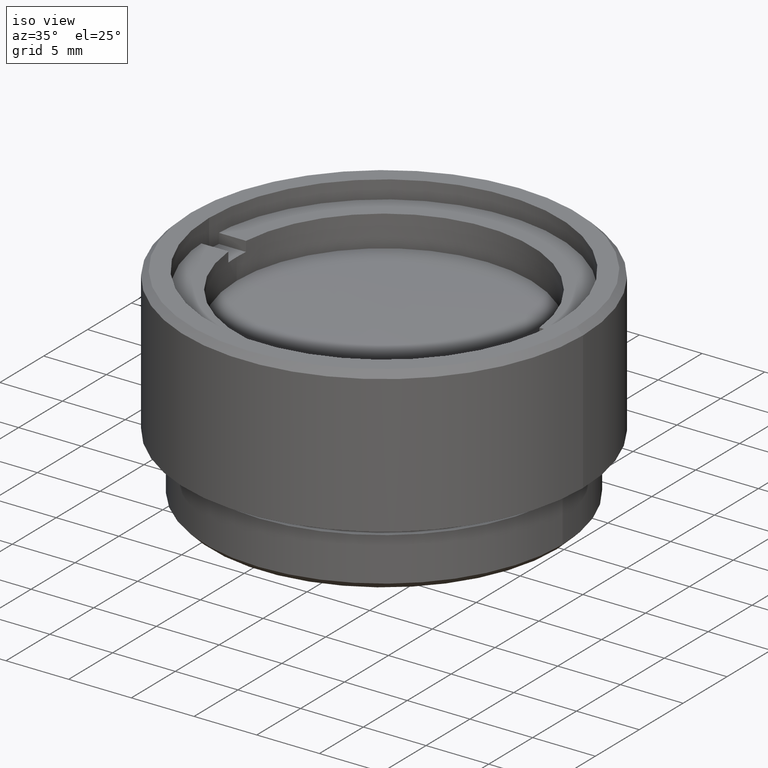
[diagram: clean part render]
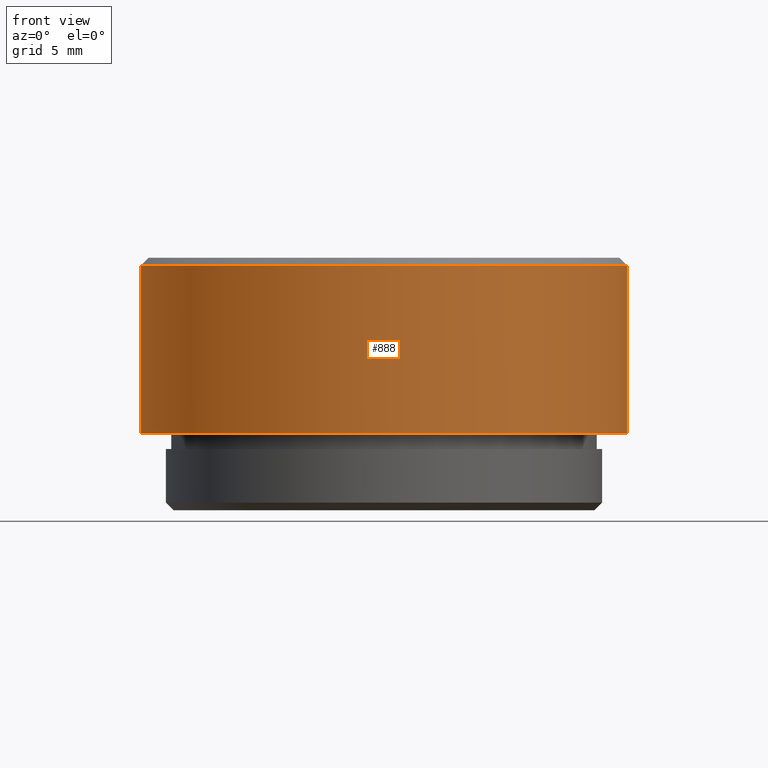
[diagram: tour spotlight — one face highlighted and labeled with its STEP entity id]
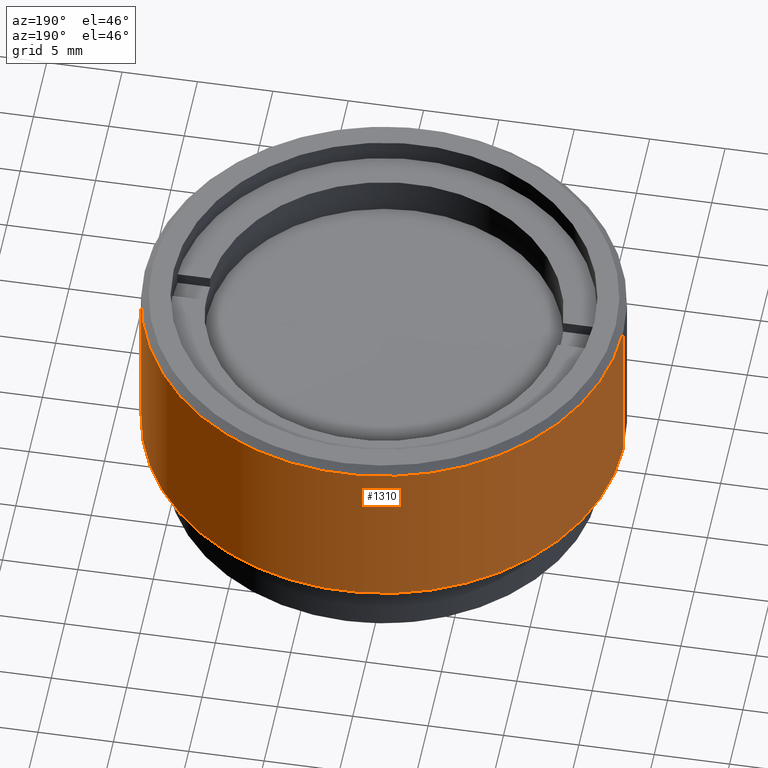
[diagram: tour spotlight — one face highlighted and labeled with its STEP entity id]
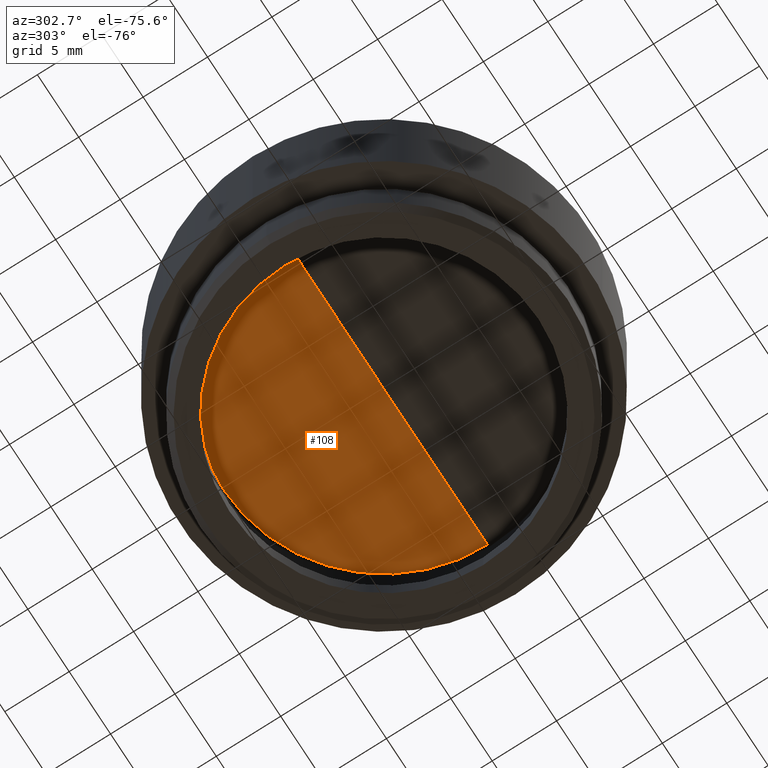
[diagram: tour spotlight — one face highlighted and labeled with its STEP entity id]
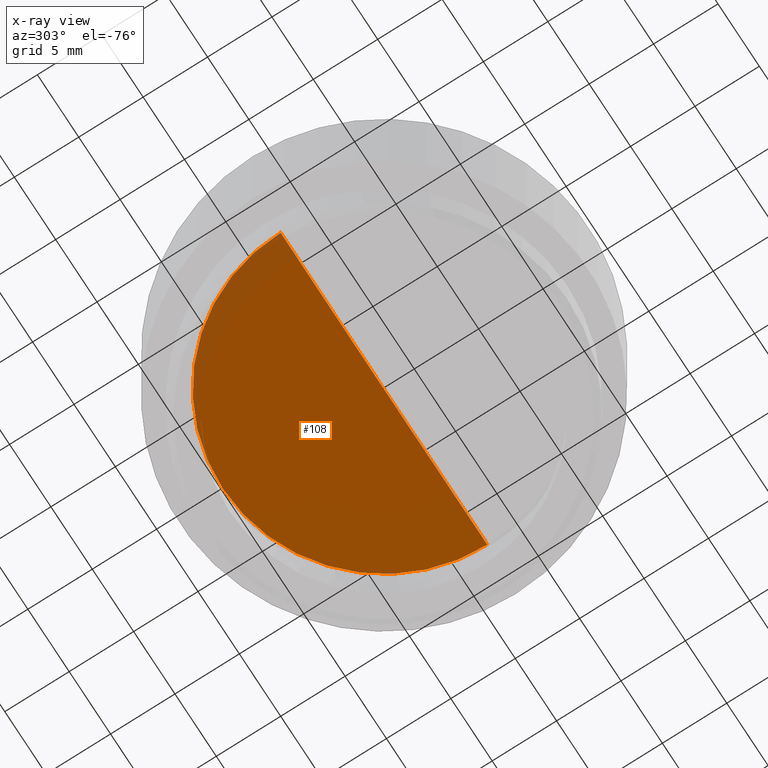
[diagram: x-ray of the same camera — body ghosted, this tour face saturated]
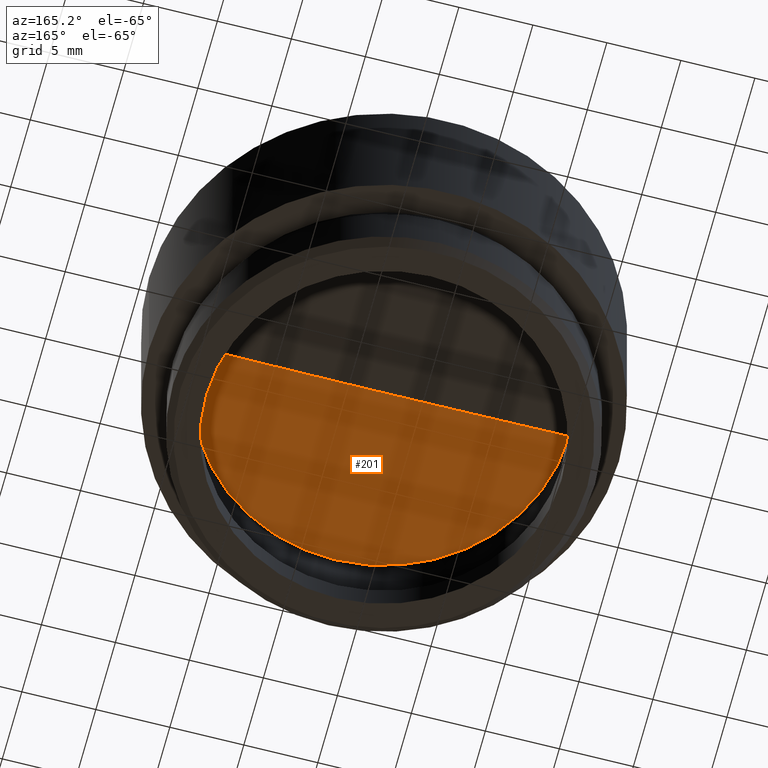
[diagram: tour spotlight — one face highlighted and labeled with its STEP entity id]
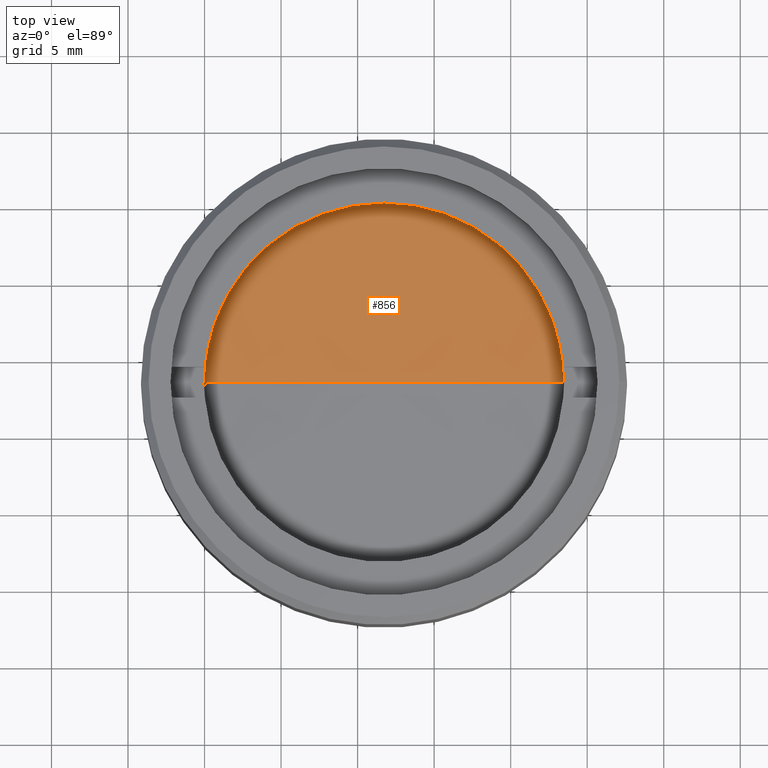
[diagram: tour spotlight — one face highlighted and labeled with its STEP entity id]
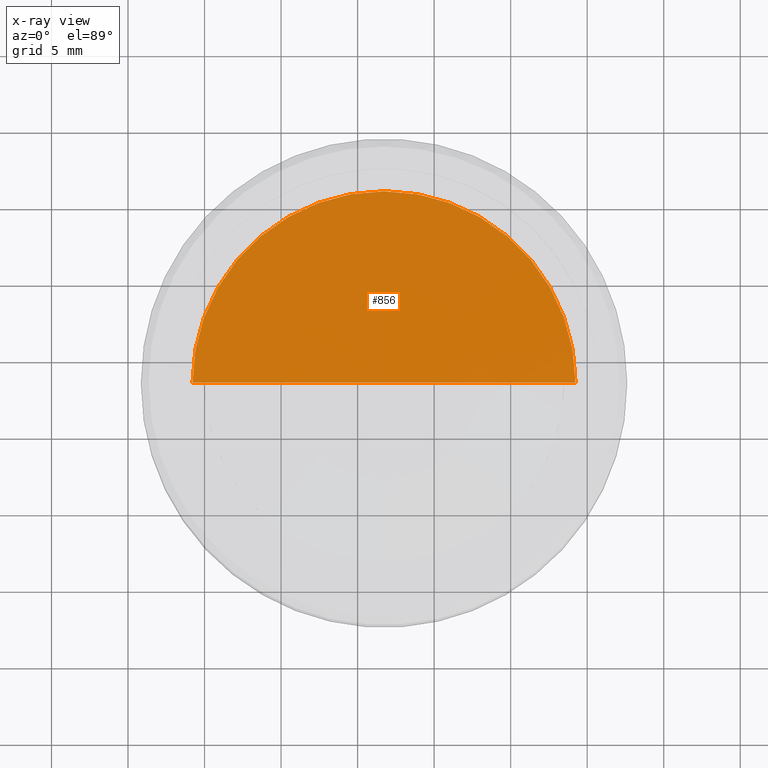
[diagram: x-ray of the same camera — body ghosted, this tour face saturated]
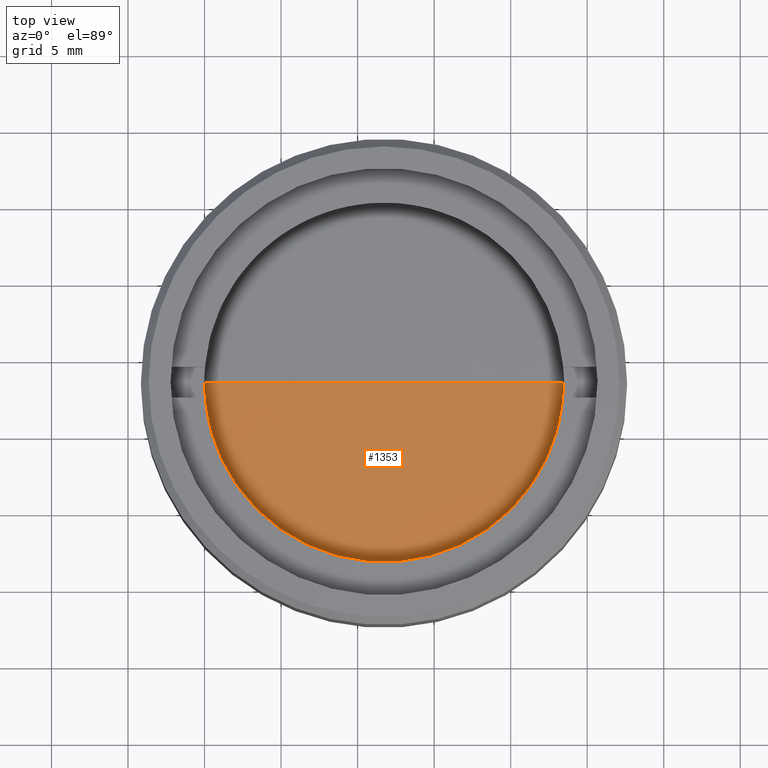
[diagram: tour spotlight — one face highlighted and labeled with its STEP entity id]
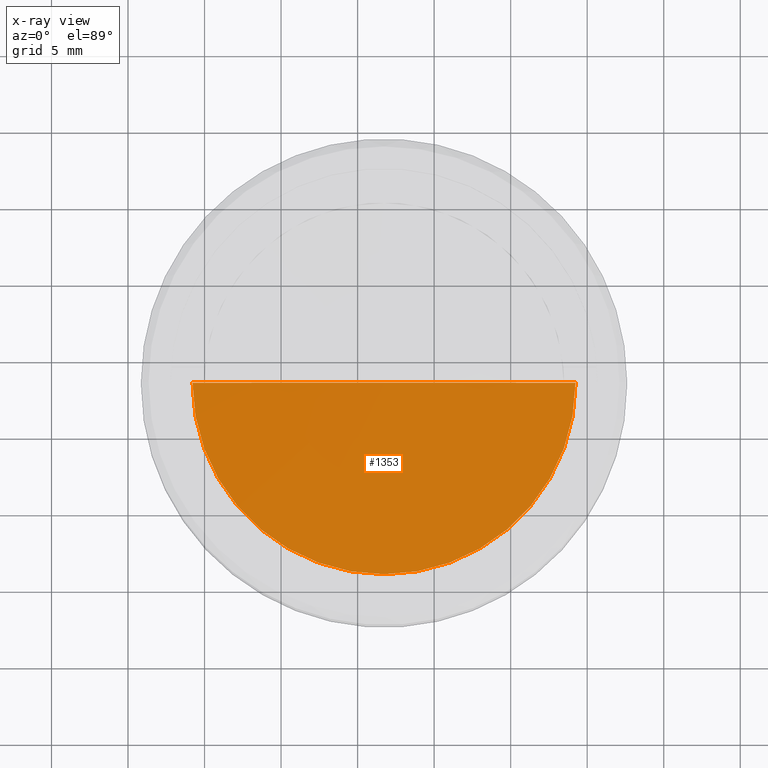
[diagram: x-ray of the same camera — body ghosted, this tour face saturated]
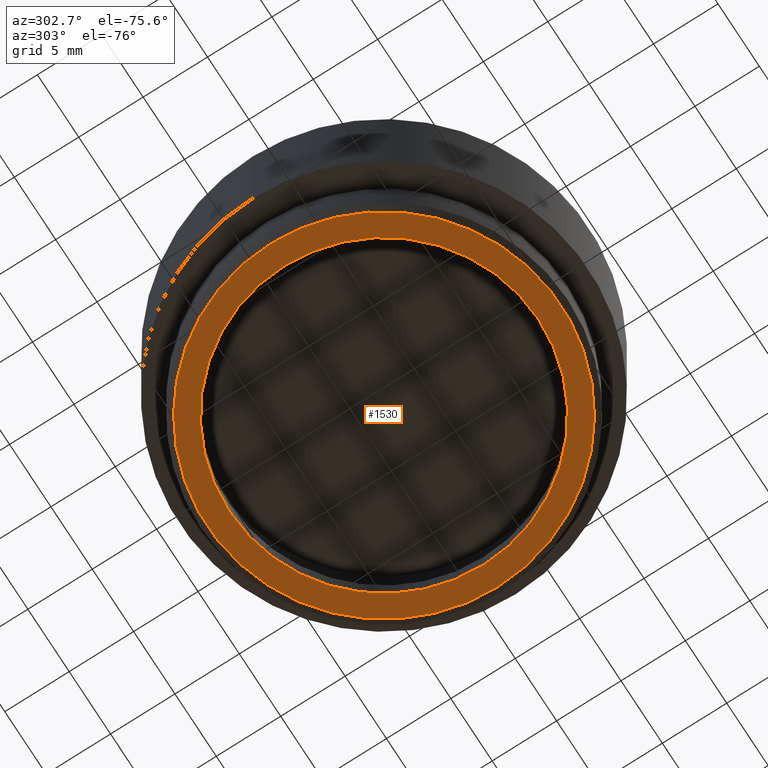
[diagram: tour spotlight — one face highlighted and labeled with its STEP entity id]
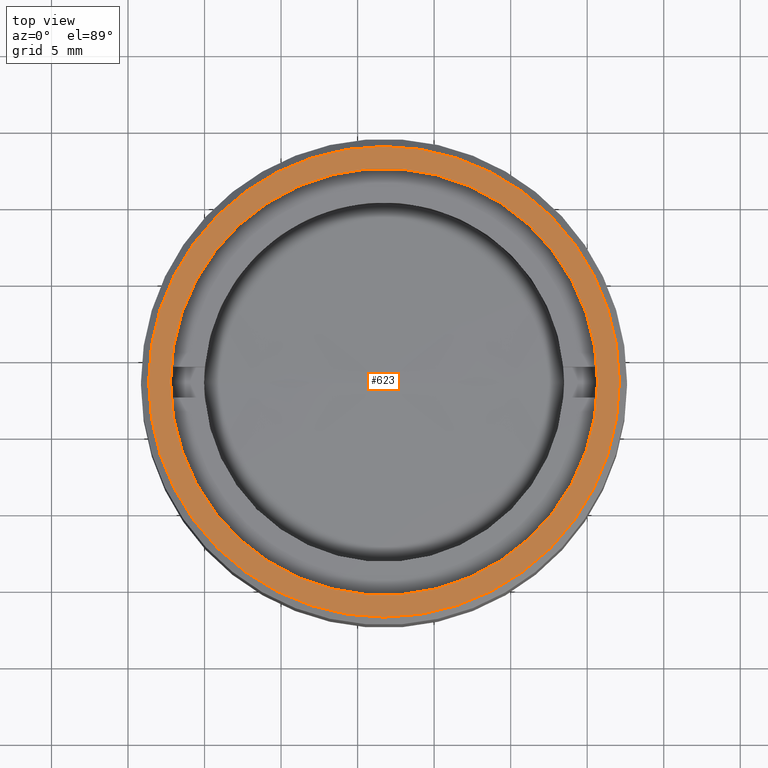
[diagram: tour spotlight — one face highlighted and labeled with its STEP entity id]
A machine part: a face-by-face anatomy tour. The part has 56 B-rep faces; the first image is the clean iso view, then the 8 largest visible faces are spotlighted one at a time (largest first), each with its STEP entity span.

Face 1 — front view, entity #888. In plain terms, the highlighted cylindrical surface (partial cylindrical patch) has radius 15.878 mm, axis along (-0, -0, -1).
Definition (entity closure, byte-faithful):
#20 = DIRECTION ( 'NONE',  ( -0.000000000000000000, -0.000000000000000000, -1.000000000000000000 ) ) ;
#179 = AXIS2_PLACEMENT_3D ( 'NONE', #1106, #587, #1637 ) ;
#225 = ORIENTED_EDGE ( 'NONE', *, *, #636, .T. ) ;
#284 = VERTEX_POINT ( 'NONE', #631 ) ;
#362 = DIRECTION ( 'NONE',  ( 0.000000000000000000, 0.000000000000000000, -1.000000000000000000 ) ) ;
#389 = VECTOR ( 'NONE', #1627, 1000.000000000000000 ) ;
#504 = CARTESIAN_POINT ( 'NONE',  ( 0.000000000000000000, 0.000000000000000000, 15.99999999999999645 ) ) ;
#531 = CARTESIAN_POINT ( 'NONE',  ( -15.87800000000000011, 0.000000000000000000, 5.000000000000000000 ) ) ;
#556 = ORIENTED_EDGE ( 'NONE', *, *, #743, .F. ) ;
#577 = CYLINDRICAL_SURFACE ( 'NONE', #1076, 15.87800000000000011 ) ;
#579 = LINE ( 'NONE', #1112, #389 ) ;
#587 = DIRECTION ( 'NONE',  ( 0.000000000000000000, 0.000000000000000000, -1.000000000000000000 ) ) ;
#631 = CARTESIAN_POINT ( 'NONE',  ( 15.87800000000000011, 1.944494187686167431E-15, 15.99999999999999645 ) ) ;
#636 = EDGE_CURVE ( 'NONE', #1263, #1698, #579, .T. ) ;
#651 = CARTESIAN_POINT ( 'NONE',  ( 15.87800000000000011, 1.944494187686167431E-15, 5.000000000000000000 ) ) ;
#743 = EDGE_CURVE ( 'NONE', #284, #1089, #1169, .T. ) ;
#761 = DIRECTION ( 'NONE',  ( -0.000000000000000000, -0.000000000000000000, -1.000000000000000000 ) ) ;
#800 = DIRECTION ( 'NONE',  ( 1.000000000000000000, 0.000000000000000000, 0.000000000000000000 ) ) ;
#842 = AXIS2_PLACEMENT_3D ( 'NONE', #504, #362, #800 ) ;
#888 = ADVANCED_FACE ( 'NONE', ( #1477 ), #577, .T. ) ;
#986 = EDGE_LOOP ( 'NONE', ( #556, #1040, #225, #1590 ) ) ;
#1040 = ORIENTED_EDGE ( 'NONE', *, *, #1188, .T. ) ;
#1076 = AXIS2_PLACEMENT_3D ( 'NONE', #1468, #20, #1325 ) ;
#1089 = VERTEX_POINT ( 'NONE', #651 ) ;
#1101 = CIRCLE ( 'NONE', #179, 15.87800000000000011 ) ;
#1106 = CARTESIAN_POINT ( 'NONE',  ( 0.000000000000000000, 0.000000000000000000, 5.000000000000000000 ) ) ;
#1112 = CARTESIAN_POINT ( 'NONE',  ( -15.87800000000000011, 0.000000000000000000, 16.50000000000000000 ) ) ;
#1169 = LINE ( 'NONE', #1321, #1204 ) ;
#1188 = EDGE_CURVE ( 'NONE', #284, #1263, #1537, .T. ) ;
#1204 = VECTOR ( 'NONE', #761, 1000.000000000000000 ) ;
#1263 = VERTEX_POINT ( 'NONE', #1696 ) ;
#1321 = CARTESIAN_POINT ( 'NONE',  ( 15.87800000000000011, 1.944494187686167431E-15, 16.50000000000000000 ) ) ;
#1325 = DIRECTION ( 'NONE',  ( -1.000000000000000000, 0.000000000000000000, 0.000000000000000000 ) ) ;
#1468 = CARTESIAN_POINT ( 'NONE',  ( 0.000000000000000000, 0.000000000000000000, 16.50000000000000000 ) ) ;
#1473 = EDGE_CURVE ( 'NONE', #1089, #1698, #1101, .T. ) ;
#1477 = FACE_OUTER_BOUND ( 'NONE', #986, .T. ) ;
#1537 = CIRCLE ( 'NONE', #842, 15.87800000000000011 ) ;
#1590 = ORIENTED_EDGE ( 'NONE', *, *, #1473, .F. ) ;
#1627 = DIRECTION ( 'NONE',  ( -0.000000000000000000, -0.000000000000000000, -1.000000000000000000 ) ) ;
#1637 = DIRECTION ( 'NONE',  ( -1.000000000000000000, 0.000000000000000000, 0.000000000000000000 ) ) ;
#1696 = CARTESIAN_POINT ( 'NONE',  ( -15.87800000000000011, 0.000000000000000000, 15.99999999999999645 ) ) ;
#1698 = VERTEX_POINT ( 'NONE', #531 ) ;

Face 2 — auxiliary view, entity #1310. In plain terms, the highlighted cylindrical surface (partial cylindrical patch) has radius 15.878 mm, axis along (-0, -0, -1).
Definition (entity closure, byte-faithful):
#256 = DIRECTION ( 'NONE',  ( 0.000000000000000000, 0.000000000000000000, -1.000000000000000000 ) ) ;
#267 = CARTESIAN_POINT ( 'NONE',  ( 0.000000000000000000, 0.000000000000000000, 5.000000000000000000 ) ) ;
#276 = ORIENTED_EDGE ( 'NONE', *, *, #636, .F. ) ;
#284 = VERTEX_POINT ( 'NONE', #631 ) ;
#302 = AXIS2_PLACEMENT_3D ( 'NONE', #524, #256, #1319 ) ;
#334 = CIRCLE ( 'NONE', #302, 15.87800000000000011 ) ;
#389 = VECTOR ( 'NONE', #1627, 1000.000000000000000 ) ;
#392 = AXIS2_PLACEMENT_3D ( 'NONE', #1634, #446, #1507 ) ;
#446 = DIRECTION ( 'NONE',  ( -0.000000000000000000, -0.000000000000000000, -1.000000000000000000 ) ) ;
#524 = CARTESIAN_POINT ( 'NONE',  ( 0.000000000000000000, 0.000000000000000000, 15.99999999999999645 ) ) ;
#531 = CARTESIAN_POINT ( 'NONE',  ( -15.87800000000000011, 0.000000000000000000, 5.000000000000000000 ) ) ;
#579 = LINE ( 'NONE', #1112, #389 ) ;
#631 = CARTESIAN_POINT ( 'NONE',  ( 15.87800000000000011, 1.944494187686167431E-15, 15.99999999999999645 ) ) ;
#636 = EDGE_CURVE ( 'NONE', #1263, #1698, #579, .T. ) ;
#651 = CARTESIAN_POINT ( 'NONE',  ( 15.87800000000000011, 1.944494187686167431E-15, 5.000000000000000000 ) ) ;
#743 = EDGE_CURVE ( 'NONE', #284, #1089, #1169, .T. ) ;
#752 = AXIS2_PLACEMENT_3D ( 'NONE', #267, #939, #1617 ) ;
#761 = DIRECTION ( 'NONE',  ( -0.000000000000000000, -0.000000000000000000, -1.000000000000000000 ) ) ;
#921 = EDGE_CURVE ( 'NONE', #1698, #1089, #1578, .T. ) ;
#939 = DIRECTION ( 'NONE',  ( 0.000000000000000000, 0.000000000000000000, -1.000000000000000000 ) ) ;
#1089 = VERTEX_POINT ( 'NONE', #651 ) ;
#1112 = CARTESIAN_POINT ( 'NONE',  ( -15.87800000000000011, 0.000000000000000000, 16.50000000000000000 ) ) ;
#1114 = EDGE_CURVE ( 'NONE', #1263, #284, #334, .T. ) ;
#1169 = LINE ( 'NONE', #1321, #1204 ) ;
#1179 = ORIENTED_EDGE ( 'NONE', *, *, #921, .F. ) ;
#1180 = EDGE_LOOP ( 'NONE', ( #1597, #1437, #1179, #276 ) ) ;
#1204 = VECTOR ( 'NONE', #761, 1000.000000000000000 ) ;
#1263 = VERTEX_POINT ( 'NONE', #1696 ) ;
#1310 = ADVANCED_FACE ( 'NONE', ( #1495 ), #1611, .T. ) ;
#1319 = DIRECTION ( 'NONE',  ( 1.000000000000000000, 0.000000000000000000, 0.000000000000000000 ) ) ;
#1321 = CARTESIAN_POINT ( 'NONE',  ( 15.87800000000000011, 1.944494187686167431E-15, 16.50000000000000000 ) ) ;
#1437 = ORIENTED_EDGE ( 'NONE', *, *, #743, .T. ) ;
#1495 = FACE_OUTER_BOUND ( 'NONE', #1180, .T. ) ;
#1507 = DIRECTION ( 'NONE',  ( -1.000000000000000000, 0.000000000000000000, 0.000000000000000000 ) ) ;
#1578 = CIRCLE ( 'NONE', #752, 15.87800000000000011 ) ;
#1597 = ORIENTED_EDGE ( 'NONE', *, *, #1114, .T. ) ;
#1611 = CYLINDRICAL_SURFACE ( 'NONE', #392, 15.87800000000000011 ) ;
#1617 = DIRECTION ( 'NONE',  ( -1.000000000000000000, 0.000000000000000000, 0.000000000000000000 ) ) ;
#1627 = DIRECTION ( 'NONE',  ( -0.000000000000000000, -0.000000000000000000, -1.000000000000000000 ) ) ;
#1634 = CARTESIAN_POINT ( 'NONE',  ( 0.000000000000000000, 0.000000000000000000, 16.50000000000000000 ) ) ;
#1696 = CARTESIAN_POINT ( 'NONE',  ( -15.87800000000000011, 0.000000000000000000, 15.99999999999999645 ) ) ;
#1698 = VERTEX_POINT ( 'NONE', #531 ) ;

Face 3 — auxiliary view, entity #108. An x-ray twin of the same camera follows (body ghosted, this face saturated) — the face is partly hidden behind the body. In plain terms, the highlighted toroidal blend (fillet) surface has major radius 1.3711 mm and minor (blend) radius 738.5 mm.
Definition (entity closure, byte-faithful):
#45 = CIRCLE ( 'NONE', #1010, 738.5000000000000000 ) ;
#108 = ADVANCED_FACE ( 'NONE', ( #602 ), #142, .T. ) ;
#123 = CARTESIAN_POINT ( 'NONE',  ( 0.000000000000000000, 0.000000000000000000, -5.870922178476289943 ) ) ;
#142 = TOROIDAL_SURFACE ( 'NONE', #1529, -1.371067824832822080, 738.5000000000000000 ) ;
#171 = DIRECTION ( 'NONE',  ( -1.000000000000000000, 0.000000000000000000, 0.000000000000000000 ) ) ;
#190 = CARTESIAN_POINT ( 'NONE',  ( 0.000000000000000000, 0.000000000000000000, 732.4987272656740060 ) ) ;
#199 = DIRECTION ( 'NONE',  ( 0.000000000000000000, 0.000000000000000000, -1.000000000000000000 ) ) ;
#266 = ORIENTED_EDGE ( 'NONE', *, *, #316, .T. ) ;
#316 = EDGE_CURVE ( 'NONE', #667, #1254, #1063, .T. ) ;
#319 = CARTESIAN_POINT ( 'NONE',  ( 12.50375756950404060, 0.000000000000000000, -5.870922178476289943 ) ) ;
#354 = CARTESIAN_POINT ( 'NONE',  ( -2.502338614096544739E-13, 0.000000000000000000, -6.000000000000000000 ) ) ;
#404 = DIRECTION ( 'NONE',  ( -1.000000000000000000, 1.224646799147352221E-16, 0.000000000000000000 ) ) ;
#463 = ORIENTED_EDGE ( 'NONE', *, *, #1525, .F. ) ;
#496 = CARTESIAN_POINT ( 'NONE',  ( 1.371067824832822080, -1.679073823095440089E-16, 732.4987272656740060 ) ) ;
#602 = FACE_OUTER_BOUND ( 'NONE', #1615, .T. ) ;
#643 = DIRECTION ( 'NONE',  ( 0.000000000000000000, 0.000000000000000000, -1.000000000000000000 ) ) ;
#667 = VERTEX_POINT ( 'NONE', #354 ) ;
#777 = CARTESIAN_POINT ( 'NONE',  ( -12.50375756950404060, 1.543285051698945061E-15, -5.870922178476289943 ) ) ;
#898 = DIRECTION ( 'NONE',  ( 1.000000000000000000, 0.000000000000000000, 0.000000000000000000 ) ) ;
#900 = AXIS2_PLACEMENT_3D ( 'NONE', #496, #1553, #404 ) ;
#923 = AXIS2_PLACEMENT_3D ( 'NONE', #123, #643, #898 ) ;
#1010 = AXIS2_PLACEMENT_3D ( 'NONE', #1519, #1384, #199 ) ;
#1063 = CIRCLE ( 'NONE', #900, 738.5000000000000000 ) ;
#1074 = CIRCLE ( 'NONE', #923, 12.50375756950404060 ) ;
#1080 = EDGE_CURVE ( 'NONE', #1254, #1336, #1074, .T. ) ;
#1254 = VERTEX_POINT ( 'NONE', #777 ) ;
#1336 = VERTEX_POINT ( 'NONE', #319 ) ;
#1384 = DIRECTION ( 'NONE',  ( 0.000000000000000000, -1.000000000000000000, 0.000000000000000000 ) ) ;
#1493 = DIRECTION ( 'NONE',  ( 0.000000000000000000, 0.000000000000000000, 1.000000000000000000 ) ) ;
#1519 = CARTESIAN_POINT ( 'NONE',  ( -1.371067824832822080, 0.000000000000000000, 732.4987272656740060 ) ) ;
#1525 = EDGE_CURVE ( 'NONE', #667, #1336, #45, .T. ) ;
#1529 = AXIS2_PLACEMENT_3D ( 'NONE', #190, #1493, #171 ) ;
#1553 = DIRECTION ( 'NONE',  ( 1.224646799147351975E-16, 1.000000000000000000, 0.000000000000000000 ) ) ;
#1615 = EDGE_LOOP ( 'NONE', ( #463, #266, #1701 ) ) ;
#1701 = ORIENTED_EDGE ( 'NONE', *, *, #1080, .T. ) ;

Face 4 — auxiliary view, entity #201. In plain terms, the highlighted toroidal blend (fillet) surface has major radius 1.3711 mm and minor (blend) radius 738.5 mm.
Definition (entity closure, byte-faithful):
#45 = CIRCLE ( 'NONE', #1010, 738.5000000000000000 ) ;
#94 = ORIENTED_EDGE ( 'NONE', *, *, #1525, .T. ) ;
#98 = FACE_OUTER_BOUND ( 'NONE', #1682, .T. ) ;
#166 = EDGE_CURVE ( 'NONE', #1336, #1254, #1358, .T. ) ;
#199 = DIRECTION ( 'NONE',  ( 0.000000000000000000, 0.000000000000000000, -1.000000000000000000 ) ) ;
#201 = ADVANCED_FACE ( 'NONE', ( #98 ), #1582, .T. ) ;
#316 = EDGE_CURVE ( 'NONE', #667, #1254, #1063, .T. ) ;
#319 = CARTESIAN_POINT ( 'NONE',  ( 12.50375756950404060, 0.000000000000000000, -5.870922178476289943 ) ) ;
#336 = DIRECTION ( 'NONE',  ( 0.000000000000000000, 0.000000000000000000, -1.000000000000000000 ) ) ;
#348 = ORIENTED_EDGE ( 'NONE', *, *, #166, .T. ) ;
#354 = CARTESIAN_POINT ( 'NONE',  ( -2.502338614096544739E-13, 0.000000000000000000, -6.000000000000000000 ) ) ;
#404 = DIRECTION ( 'NONE',  ( -1.000000000000000000, 1.224646799147352221E-16, 0.000000000000000000 ) ) ;
#496 = CARTESIAN_POINT ( 'NONE',  ( 1.371067824832822080, -1.679073823095440089E-16, 732.4987272656740060 ) ) ;
#611 = CARTESIAN_POINT ( 'NONE',  ( 0.000000000000000000, 0.000000000000000000, -5.870922178476289943 ) ) ;
#667 = VERTEX_POINT ( 'NONE', #354 ) ;
#777 = CARTESIAN_POINT ( 'NONE',  ( -12.50375756950404060, 1.543285051698945061E-15, -5.870922178476289943 ) ) ;
#832 = AXIS2_PLACEMENT_3D ( 'NONE', #611, #336, #1544 ) ;
#900 = AXIS2_PLACEMENT_3D ( 'NONE', #496, #1553, #404 ) ;
#1010 = AXIS2_PLACEMENT_3D ( 'NONE', #1519, #1384, #199 ) ;
#1063 = CIRCLE ( 'NONE', #900, 738.5000000000000000 ) ;
#1181 = DIRECTION ( 'NONE',  ( 0.000000000000000000, 0.000000000000000000, 1.000000000000000000 ) ) ;
#1249 = ORIENTED_EDGE ( 'NONE', *, *, #316, .F. ) ;
#1254 = VERTEX_POINT ( 'NONE', #777 ) ;
#1280 = DIRECTION ( 'NONE',  ( -1.000000000000000000, 0.000000000000000000, 0.000000000000000000 ) ) ;
#1336 = VERTEX_POINT ( 'NONE', #319 ) ;
#1358 = CIRCLE ( 'NONE', #832, 12.50375756950404060 ) ;
#1384 = DIRECTION ( 'NONE',  ( 0.000000000000000000, -1.000000000000000000, 0.000000000000000000 ) ) ;
#1443 = AXIS2_PLACEMENT_3D ( 'NONE', #1562, #1181, #1280 ) ;
#1519 = CARTESIAN_POINT ( 'NONE',  ( -1.371067824832822080, 0.000000000000000000, 732.4987272656740060 ) ) ;
#1525 = EDGE_CURVE ( 'NONE', #667, #1336, #45, .T. ) ;
#1544 = DIRECTION ( 'NONE',  ( 1.000000000000000000, 0.000000000000000000, 0.000000000000000000 ) ) ;
#1553 = DIRECTION ( 'NONE',  ( 1.224646799147351975E-16, 1.000000000000000000, 0.000000000000000000 ) ) ;
#1562 = CARTESIAN_POINT ( 'NONE',  ( 0.000000000000000000, 0.000000000000000000, 732.4987272656740060 ) ) ;
#1582 = TOROIDAL_SURFACE ( 'NONE', #1443, -1.371067824832822080, 738.5000000000000000 ) ;
#1682 = EDGE_LOOP ( 'NONE', ( #1249, #94, #348 ) ) ;

Face 5 — top view, entity #856. An x-ray twin of the same camera follows (body ghosted, this face saturated) — the face is partly hidden behind the body. In plain terms, the highlighted spherical surface has radius 219.8 mm.
Definition (entity closure, byte-faithful):
#12 = SPHERICAL_SURFACE ( 'NONE', #491, 219.7999999999999829 ) ;
#59 = DIRECTION ( 'NONE',  ( 0.000000000000000000, 0.000000000000000000, -1.000000000000000000 ) ) ;
#135 = CIRCLE ( 'NONE', #1108, 12.51138433515481907 ) ;
#143 = DIRECTION ( 'NONE',  ( -1.000000000000000000, 0.000000000000000000, 0.000000000000000000 ) ) ;
#149 = CIRCLE ( 'NONE', #1129, 219.7999999999999829 ) ;
#178 = EDGE_LOOP ( 'NONE', ( #493, #1385 ) ) ;
#324 = VERTEX_POINT ( 'NONE', #1461 ) ;
#407 = CARTESIAN_POINT ( 'NONE',  ( 0.000000000000000000, 0.000000000000000000, -219.7999999999999829 ) ) ;
#449 = DIRECTION ( 'NONE',  ( 0.000000000000000000, -1.000000000000000000, 0.000000000000000000 ) ) ;
#459 = DIRECTION ( 'NONE',  ( -3.033003784430789835E-17, 0.000000000000000000, 1.000000000000000000 ) ) ;
#491 = AXIS2_PLACEMENT_3D ( 'NONE', #407, #1216, #143 ) ;
#493 = ORIENTED_EDGE ( 'NONE', *, *, #1348, .F. ) ;
#526 = FACE_OUTER_BOUND ( 'NONE', #178, .T. ) ;
#530 = EDGE_CURVE ( 'NONE', #324, #859, #135, .T. ) ;
#725 = CARTESIAN_POINT ( 'NONE',  ( -6.718523373188969762E-15, 0.000000000000000000, -0.3563733848301884888 ) ) ;
#856 = ADVANCED_FACE ( 'NONE', ( #526 ), #12, .T. ) ;
#859 = VERTEX_POINT ( 'NONE', #933 ) ;
#933 = CARTESIAN_POINT ( 'NONE',  ( -12.51138433515481907, 0.000000000000000000, -0.3563733848301889884 ) ) ;
#1108 = AXIS2_PLACEMENT_3D ( 'NONE', #725, #459, #1120 ) ;
#1120 = DIRECTION ( 'NONE',  ( -1.000000000000000000, 0.000000000000000000, -3.033003784430788602E-17 ) ) ;
#1129 = AXIS2_PLACEMENT_3D ( 'NONE', #1639, #449, #59 ) ;
#1216 = DIRECTION ( 'NONE',  ( 0.000000000000000000, -0.000000000000000000, 1.000000000000000000 ) ) ;
#1348 = EDGE_CURVE ( 'NONE', #324, #859, #149, .T. ) ;
#1385 = ORIENTED_EDGE ( 'NONE', *, *, #530, .T. ) ;
#1461 = CARTESIAN_POINT ( 'NONE',  ( 12.51138433515481907, 1.543752056406054943E-15, -0.3563733848301884888 ) ) ;
#1639 = CARTESIAN_POINT ( 'NONE',  ( 0.000000000000000000, 0.000000000000000000, -219.7999999999999829 ) ) ;

Face 6 — top view, entity #1353. An x-ray twin of the same camera follows (body ghosted, this face saturated) — the face is partly hidden behind the body. In plain terms, the highlighted spherical surface has radius 219.8 mm.
Definition (entity closure, byte-faithful):
#59 = DIRECTION ( 'NONE',  ( 0.000000000000000000, 0.000000000000000000, -1.000000000000000000 ) ) ;
#119 = ORIENTED_EDGE ( 'NONE', *, *, #1348, .T. ) ;
#149 = CIRCLE ( 'NONE', #1129, 219.7999999999999829 ) ;
#257 = CIRCLE ( 'NONE', #925, 12.51138433515481907 ) ;
#303 = ORIENTED_EDGE ( 'NONE', *, *, #1541, .T. ) ;
#312 = DIRECTION ( 'NONE',  ( 0.000000000000000000, -0.000000000000000000, 1.000000000000000000 ) ) ;
#324 = VERTEX_POINT ( 'NONE', #1461 ) ;
#449 = DIRECTION ( 'NONE',  ( 0.000000000000000000, -1.000000000000000000, 0.000000000000000000 ) ) ;
#489 = DIRECTION ( 'NONE',  ( -1.000000000000000000, 0.000000000000000000, -3.033003784430788602E-17 ) ) ;
#588 = DIRECTION ( 'NONE',  ( -1.000000000000000000, 0.000000000000000000, 0.000000000000000000 ) ) ;
#606 = CARTESIAN_POINT ( 'NONE',  ( -6.718523373188969762E-15, 0.000000000000000000, -0.3563733848301884888 ) ) ;
#720 = SPHERICAL_SURFACE ( 'NONE', #1421, 219.7999999999999829 ) ;
#859 = VERTEX_POINT ( 'NONE', #933 ) ;
#925 = AXIS2_PLACEMENT_3D ( 'NONE', #606, #1030, #489 ) ;
#933 = CARTESIAN_POINT ( 'NONE',  ( -12.51138433515481907, 0.000000000000000000, -0.3563733848301889884 ) ) ;
#1030 = DIRECTION ( 'NONE',  ( -3.033003784430789835E-17, 0.000000000000000000, 1.000000000000000000 ) ) ;
#1122 = FACE_OUTER_BOUND ( 'NONE', #1434, .T. ) ;
#1129 = AXIS2_PLACEMENT_3D ( 'NONE', #1639, #449, #59 ) ;
#1348 = EDGE_CURVE ( 'NONE', #324, #859, #149, .T. ) ;
#1353 = ADVANCED_FACE ( 'NONE', ( #1122 ), #720, .T. ) ;
#1378 = CARTESIAN_POINT ( 'NONE',  ( 0.000000000000000000, 0.000000000000000000, -219.7999999999999829 ) ) ;
#1421 = AXIS2_PLACEMENT_3D ( 'NONE', #1378, #312, #588 ) ;
#1434 = EDGE_LOOP ( 'NONE', ( #303, #119 ) ) ;
#1461 = CARTESIAN_POINT ( 'NONE',  ( 12.51138433515481907, 1.543752056406054943E-15, -0.3563733848301884888 ) ) ;
#1541 = EDGE_CURVE ( 'NONE', #859, #324, #257, .T. ) ;
#1639 = CARTESIAN_POINT ( 'NONE',  ( 0.000000000000000000, 0.000000000000000000, -219.7999999999999829 ) ) ;

Face 7 — auxiliary view, entity #1530. In plain terms, the highlighted planar face has unit normal (0, 0, 1).
Definition (entity closure, byte-faithful):
#72 = AXIS2_PLACEMENT_3D ( 'NONE', #959, #367, #901 ) ;
#122 = DIRECTION ( 'NONE',  ( 1.000000000000000000, 0.000000000000000000, 0.000000000000000000 ) ) ;
#130 = CIRCLE ( 'NONE', #1100, 12.00000000000000178 ) ;
#172 = AXIS2_PLACEMENT_3D ( 'NONE', #780, #1031, #383 ) ;
#175 = DIRECTION ( 'NONE',  ( 1.000000000000000000, 0.000000000000000000, 0.000000000000000000 ) ) ;
#217 = VERTEX_POINT ( 'NONE', #350 ) ;
#221 = EDGE_CURVE ( 'NONE', #1393, #1197, #1411, .T. ) ;
#229 = CARTESIAN_POINT ( 'NONE',  ( 0.000000000000000000, 0.000000000000000000, 0.000000000000000000 ) ) ;
#289 = CARTESIAN_POINT ( 'NONE',  ( -12.00000000000000178, 0.000000000000000000, 0.000000000000000000 ) ) ;
#350 = CARTESIAN_POINT ( 'NONE',  ( -13.75000000000000533, 1.714505518806294835E-15, 0.000000000000000000 ) ) ;
#367 = DIRECTION ( 'NONE',  ( 0.000000000000000000, 0.000000000000000000, 1.000000000000000000 ) ) ;
#383 = DIRECTION ( 'NONE',  ( 1.000000000000000000, 0.000000000000000000, 0.000000000000000000 ) ) ;
#476 = CIRCLE ( 'NONE', #172, 13.75000000000000533 ) ;
#519 = ORIENTED_EDGE ( 'NONE', *, *, #221, .T. ) ;
#545 = ORIENTED_EDGE ( 'NONE', *, *, #787, .T. ) ;
#613 = CARTESIAN_POINT ( 'NONE',  ( 12.00000000000000178, 1.469576158976824144E-15, 0.000000000000000000 ) ) ;
#650 = EDGE_LOOP ( 'NONE', ( #519, #1439 ) ) ;
#676 = CIRCLE ( 'NONE', #870, 13.75000000000000533 ) ;
#709 = PLANE ( 'NONE',  #72 ) ;
#732 = FACE_BOUND ( 'NONE', #650, .T. ) ;
#780 = CARTESIAN_POINT ( 'NONE',  ( 0.000000000000000000, 0.000000000000000000, 0.000000000000000000 ) ) ;
#787 = EDGE_CURVE ( 'NONE', #217, #1368, #476, .T. ) ;
#870 = AXIS2_PLACEMENT_3D ( 'NONE', #952, #1497, #175 ) ;
#901 = DIRECTION ( 'NONE',  ( 1.000000000000000000, 0.000000000000000000, -0.000000000000000000 ) ) ;
#952 = CARTESIAN_POINT ( 'NONE',  ( 0.000000000000000000, 0.000000000000000000, 0.000000000000000000 ) ) ;
#959 = CARTESIAN_POINT ( 'NONE',  ( 0.000000000000000000, 0.000000000000000000, 0.000000000000000000 ) ) ;
#1031 = DIRECTION ( 'NONE',  ( -0.000000000000000000, -0.000000000000000000, -1.000000000000000000 ) ) ;
#1054 = CARTESIAN_POINT ( 'NONE',  ( 0.000000000000000000, 0.000000000000000000, 0.000000000000000000 ) ) ;
#1100 = AXIS2_PLACEMENT_3D ( 'NONE', #1054, #1165, #1173 ) ;
#1156 = EDGE_CURVE ( 'NONE', #1197, #1393, #130, .T. ) ;
#1165 = DIRECTION ( 'NONE',  ( 0.000000000000000000, 0.000000000000000000, 1.000000000000000000 ) ) ;
#1173 = DIRECTION ( 'NONE',  ( 1.000000000000000000, 0.000000000000000000, 0.000000000000000000 ) ) ;
#1197 = VERTEX_POINT ( 'NONE', #613 ) ;
#1292 = DIRECTION ( 'NONE',  ( 0.000000000000000000, 0.000000000000000000, 1.000000000000000000 ) ) ;
#1367 = CARTESIAN_POINT ( 'NONE',  ( 13.75000000000000533, 0.000000000000000000, 0.000000000000000000 ) ) ;
#1368 = VERTEX_POINT ( 'NONE', #1367 ) ;
#1393 = VERTEX_POINT ( 'NONE', #289 ) ;
#1411 = CIRCLE ( 'NONE', #1664, 12.00000000000000178 ) ;
#1439 = ORIENTED_EDGE ( 'NONE', *, *, #1156, .T. ) ;
#1455 = EDGE_CURVE ( 'NONE', #1368, #217, #676, .T. ) ;
#1490 = FACE_OUTER_BOUND ( 'NONE', #1623, .T. ) ;
#1497 = DIRECTION ( 'NONE',  ( -0.000000000000000000, -0.000000000000000000, -1.000000000000000000 ) ) ;
#1530 = ADVANCED_FACE ( 'NONE', ( #1490, #732 ), #709, .F. ) ;
#1623 = EDGE_LOOP ( 'NONE', ( #1648, #545 ) ) ;
#1648 = ORIENTED_EDGE ( 'NONE', *, *, #1455, .T. ) ;
#1664 = AXIS2_PLACEMENT_3D ( 'NONE', #229, #1292, #122 ) ;

Face 8 — top view, entity #623. In plain terms, the highlighted planar face has unit normal (0, 0, 1).
Definition (entity closure, byte-faithful):
#14 = AXIS2_PLACEMENT_3D ( 'NONE', #772, #1177, #110 ) ;
#26 = VERTEX_POINT ( 'NONE', #854 ) ;
#80 = ORIENTED_EDGE ( 'NONE', *, *, #714, .F. ) ;
#110 = DIRECTION ( 'NONE',  ( 1.000000000000000000, 0.000000000000000000, 0.000000000000000000 ) ) ;
#167 = ORIENTED_EDGE ( 'NONE', *, *, #1484, .F. ) ;
#185 = AXIS2_PLACEMENT_3D ( 'NONE', #1399, #214, #749 ) ;
#205 = AXIS2_PLACEMENT_3D ( 'NONE', #970, #1131, #322 ) ;
#214 = DIRECTION ( 'NONE',  ( 0.000000000000000000, 0.000000000000000000, 1.000000000000000000 ) ) ;
#301 = CIRCLE ( 'NONE', #1316, 13.94999999999999929 ) ;
#322 = DIRECTION ( 'NONE',  ( 1.000000000000000000, 0.000000000000000000, 0.000000000000000000 ) ) ;
#364 = CIRCLE ( 'NONE', #1338, 15.37800000000000367 ) ;
#479 = ORIENTED_EDGE ( 'NONE', *, *, #1082, .T. ) ;
#515 = CIRCLE ( 'NONE', #205, 15.37800000000000367 ) ;
#529 = CARTESIAN_POINT ( 'NONE',  ( -15.37800000000000367, 0.000000000000000000, 16.50000000000000000 ) ) ;
#562 = DIRECTION ( 'NONE',  ( 1.000000000000000000, 0.000000000000000000, 0.000000000000000000 ) ) ;
#623 = ADVANCED_FACE ( 'NONE', ( #1246, #1536 ), #875, .T. ) ;
#714 = EDGE_CURVE ( 'NONE', #26, #1498, #1229, .T. ) ;
#749 = DIRECTION ( 'NONE',  ( 1.000000000000000000, 0.000000000000000000, -0.000000000000000000 ) ) ;
#755 = DIRECTION ( 'NONE',  ( 1.000000000000000000, 0.000000000000000000, 0.000000000000000000 ) ) ;
#771 = EDGE_LOOP ( 'NONE', ( #1239, #479 ) ) ;
#772 = CARTESIAN_POINT ( 'NONE',  ( 0.000000000000000000, 0.000000000000000000, 16.50000000000000000 ) ) ;
#792 = DIRECTION ( 'NONE',  ( 0.000000000000000000, 0.000000000000000000, 1.000000000000000000 ) ) ;
#850 = CARTESIAN_POINT ( 'NONE',  ( 0.000000000000000000, 0.000000000000000000, 16.50000000000000000 ) ) ;
#854 = CARTESIAN_POINT ( 'NONE',  ( 13.94999999999999929, 0.000000000000000000, 16.50000000000000000 ) ) ;
#875 = PLANE ( 'NONE',  #185 ) ;
#906 = CARTESIAN_POINT ( 'NONE',  ( 0.000000000000000000, 0.000000000000000000, 16.50000000000000000 ) ) ;
#970 = CARTESIAN_POINT ( 'NONE',  ( 0.000000000000000000, 0.000000000000000000, 16.50000000000000000 ) ) ;
#1082 = EDGE_CURVE ( 'NONE', #1441, #1268, #364, .T. ) ;
#1131 = DIRECTION ( 'NONE',  ( 0.000000000000000000, 0.000000000000000000, 1.000000000000000000 ) ) ;
#1177 = DIRECTION ( 'NONE',  ( 0.000000000000000000, 0.000000000000000000, 1.000000000000000000 ) ) ;
#1229 = CIRCLE ( 'NONE', #14, 13.94999999999999929 ) ;
#1239 = ORIENTED_EDGE ( 'NONE', *, *, #1431, .T. ) ;
#1246 = FACE_OUTER_BOUND ( 'NONE', #771, .T. ) ;
#1268 = VERTEX_POINT ( 'NONE', #529 ) ;
#1309 = EDGE_LOOP ( 'NONE', ( #80, #167 ) ) ;
#1316 = AXIS2_PLACEMENT_3D ( 'NONE', #850, #1377, #562 ) ;
#1338 = AXIS2_PLACEMENT_3D ( 'NONE', #906, #792, #755 ) ;
#1352 = CARTESIAN_POINT ( 'NONE',  ( 15.37800000000000367, 1.913878017707484038E-15, 16.50000000000000000 ) ) ;
#1377 = DIRECTION ( 'NONE',  ( 0.000000000000000000, 0.000000000000000000, 1.000000000000000000 ) ) ;
#1399 = CARTESIAN_POINT ( 'NONE',  ( 0.000000000000000000, 0.000000000000000000, 16.50000000000000000 ) ) ;
#1431 = EDGE_CURVE ( 'NONE', #1268, #1441, #515, .T. ) ;
#1441 = VERTEX_POINT ( 'NONE', #1352 ) ;
#1483 = CARTESIAN_POINT ( 'NONE',  ( -13.94999999999999929, 1.708382284810557565E-15, 16.50000000000000000 ) ) ;
#1484 = EDGE_CURVE ( 'NONE', #1498, #26, #301, .T. ) ;
#1498 = VERTEX_POINT ( 'NONE', #1483 ) ;
#1536 = FACE_BOUND ( 'NONE', #1309, .T. ) ;